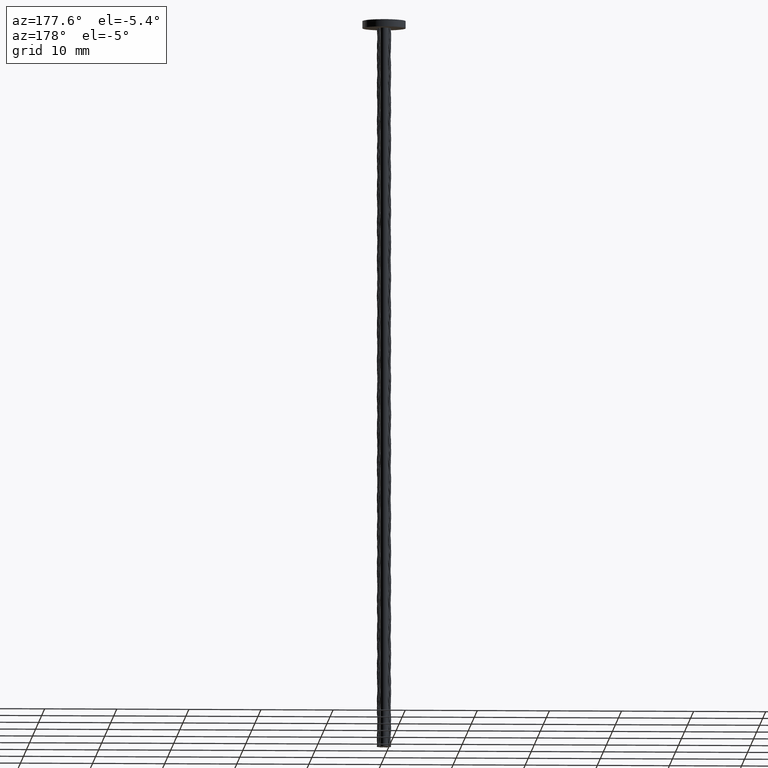
[diagram: clean part render]
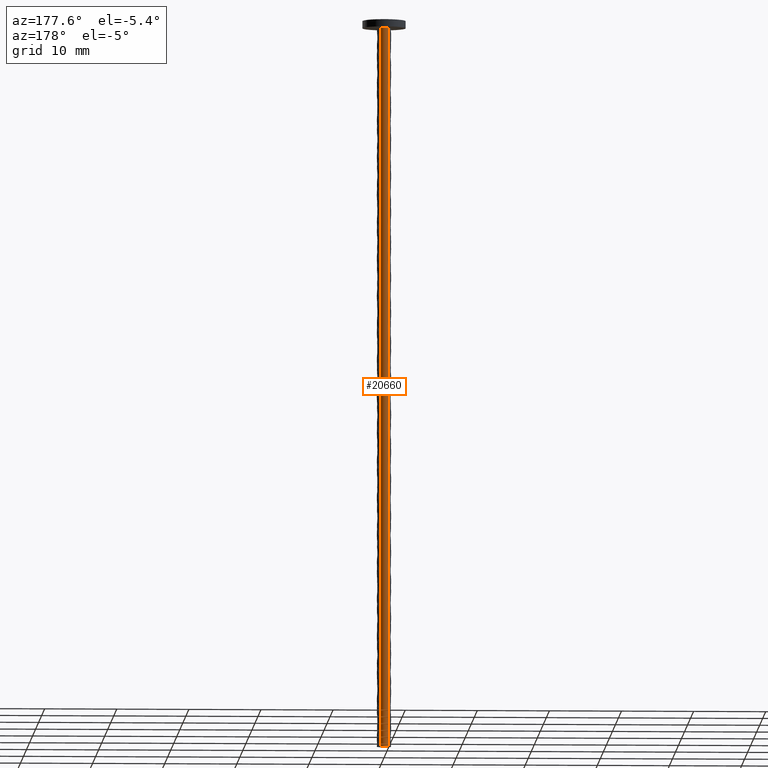
[diagram: same view with one face highlighted and labeled with its STEP entity id]
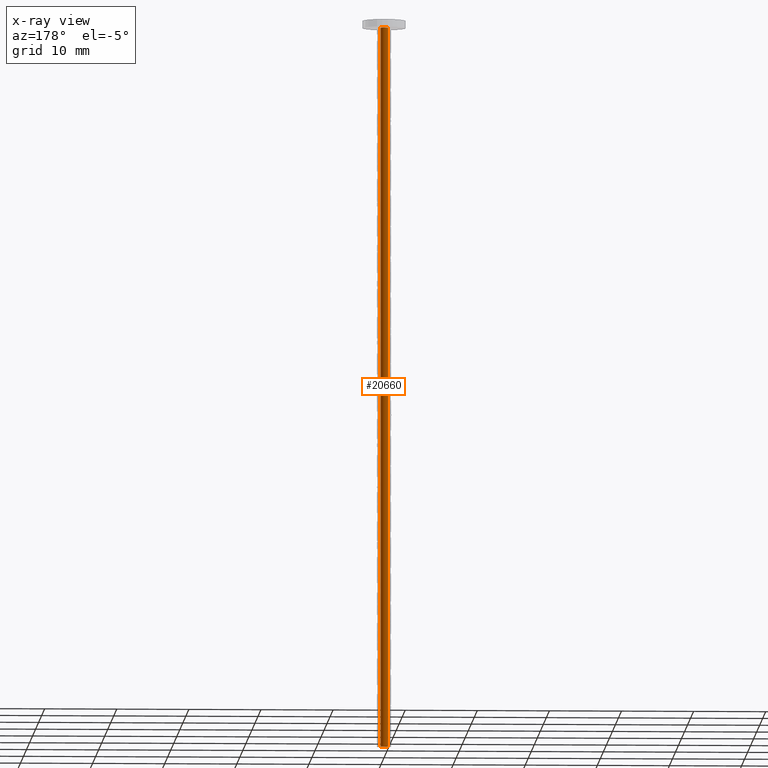
[diagram: x-ray of the same camera — body ghosted, the highlighted face saturated]
A machine part, auxiliary view. The second image highlights one B-rep face of the part: STEP entity #20660.
The next image is the same camera in x-ray: the body ghosted, the highlighted face saturated — about 0% of this face is hidden behind the body in this view.
In plain terms, the highlighted cylindrical surface (bore or boss wall) has radius 0.55 mm, axis along (0, 0, -1).
Its self-contained STEP definition (entity closure, byte-faithful):
#428 = CYLINDRICAL_SURFACE ( 'NONE', #35946, 0.5500000000000000444 ) ;
#1109 = DIRECTION ( 'NONE',  ( -1.000000000000000000, 0.000000000000000000, 0.000000000000000000 ) ) ;
#1244 = CARTESIAN_POINT ( 'NONE',  ( 0.000000000000000000, 0.6666666666666669627, 0.000000000000000000 ) ) ;
#3954 = AXIS2_PLACEMENT_3D ( 'NONE', #4148, #30793, #24393 ) ;
#4148 = CARTESIAN_POINT ( 'NONE',  ( 0.000000000000000000, 0.6666666666666669627, 0.000000000000000000 ) ) ;
#4696 = ORIENTED_EDGE ( 'NONE', *, *, #34224, .F. ) ;
#5935 = VERTEX_POINT ( 'NONE', #39552 ) ;
#8400 = CARTESIAN_POINT ( 'NONE',  ( 0.000000000000000000, 0.6666666666666669627, -100.0000000000000000 ) ) ;
#17993 = CIRCLE ( 'NONE', #3954, 0.5500000000000000444 ) ;
#20660 = ADVANCED_FACE ( 'NONE', ( #26502, #36389 ), #428, .T. ) ;
#24393 = DIRECTION ( 'NONE',  ( -1.000000000000000000, 0.000000000000000000, 0.000000000000000000 ) ) ;
#25687 = AXIS2_PLACEMENT_3D ( 'NONE', #8400, #31988, #31703 ) ;
#26502 = FACE_OUTER_BOUND ( 'NONE', #39545, .T. ) ;
#27902 = DIRECTION ( 'NONE',  ( 0.000000000000000000, 0.000000000000000000, -1.000000000000000000 ) ) ;
#29937 = VERTEX_POINT ( 'NONE', #39845 ) ;
#30793 = DIRECTION ( 'NONE',  ( 0.000000000000000000, 0.000000000000000000, -1.000000000000000000 ) ) ;
#31703 = DIRECTION ( 'NONE',  ( -1.000000000000000000, 0.000000000000000000, 0.000000000000000000 ) ) ;
#31988 = DIRECTION ( 'NONE',  ( 0.000000000000000000, 0.000000000000000000, -1.000000000000000000 ) ) ;
#32902 = EDGE_LOOP ( 'NONE', ( #43103 ) ) ;
#33980 = EDGE_CURVE ( 'NONE', #29937, #29937, #17993, .T. ) ;
#34224 = EDGE_CURVE ( 'NONE', #5935, #5935, #40403, .T. ) ;
#35946 = AXIS2_PLACEMENT_3D ( 'NONE', #1244, #27902, #1109 ) ;
#36389 = FACE_OUTER_BOUND ( 'NONE', #32902, .T. ) ;
#39545 = EDGE_LOOP ( 'NONE', ( #4696 ) ) ;
#39552 = CARTESIAN_POINT ( 'NONE',  ( -0.5500000000000000444, 0.6666666666666669627, -100.0000000000000000 ) ) ;
#39845 = CARTESIAN_POINT ( 'NONE',  ( -0.5500000000000000444, 0.6666666666666669627, 0.000000000000000000 ) ) ;
#40403 = CIRCLE ( 'NONE', #25687, 0.5500000000000000444 ) ;
#43103 = ORIENTED_EDGE ( 'NONE', *, *, #33980, .T. ) ;